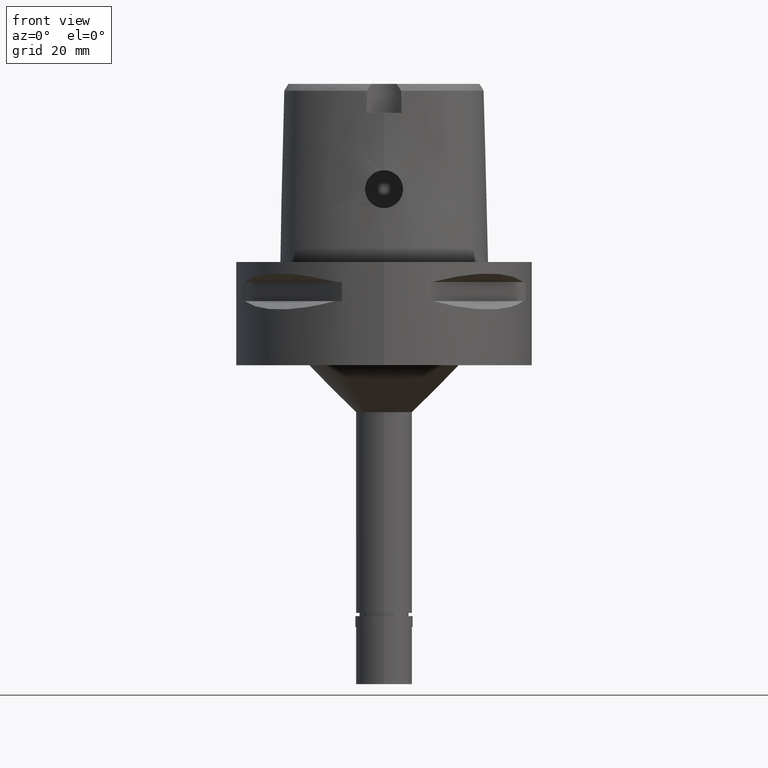
[diagram: clean part render]
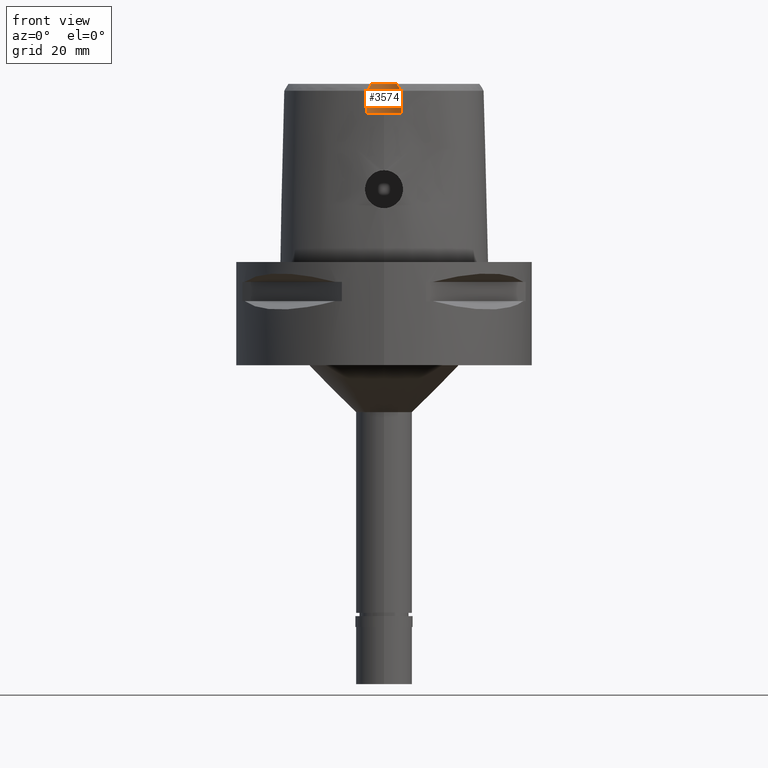
[diagram: same view with one face highlighted and labeled with its STEP entity id]
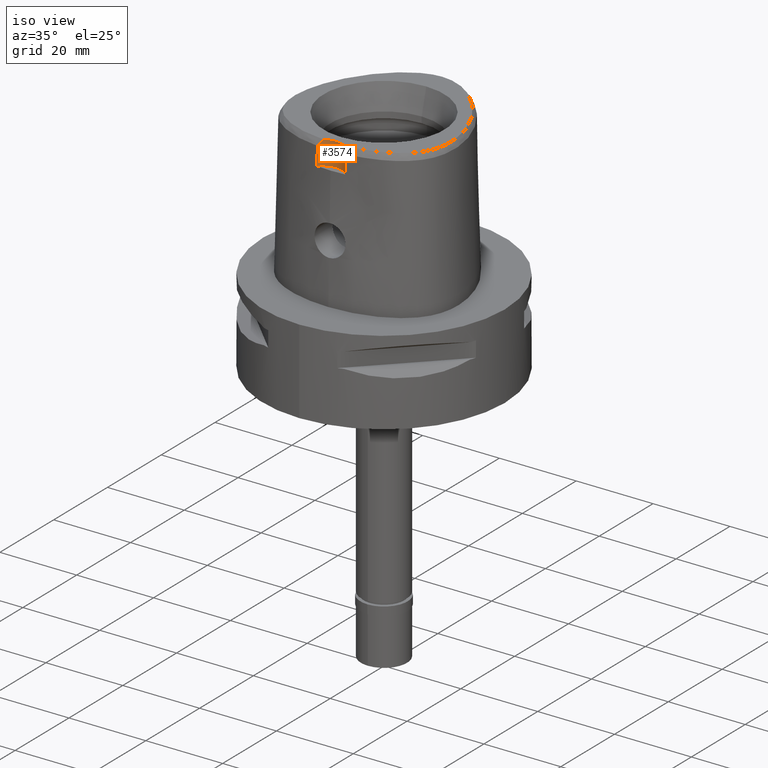
[diagram: same view with one face highlighted and labeled with its STEP entity id]
A machine part, front view. The second image highlights one B-rep face of the part: STEP entity #3574.
A second angle (iso view) of the same face is appended — the face is thin or edge-on in the first view.
In plain terms, the highlighted cylindrical surface (edge-blend (fillet) strip) has radius 5 mm, axis along (0, 0, 1).
Its self-contained STEP definition (entity closure, byte-faithful):
#209 = DIRECTION ( 'NONE',  ( 0.0000000000000000000, 0.0000000000000000000, 1.000000000000000000 ) ) ;
#422 = EDGE_CURVE ( 'NONE', #1722, #1509, #3290, .T. ) ;
#498 = CYLINDRICAL_SURFACE ( 'NONE', #4521, 5.000000000000000888 ) ;
#587 = CARTESIAN_POINT ( 'NONE',  ( 0.0000000000000000000, -23.00000000000000000, 38.00000000000000000 ) ) ;
#610 = CARTESIAN_POINT ( 'NONE',  ( 2.682287482605000051, -18.78036330228999873, 38.00000000000000000 ) ) ;
#933 = CARTESIAN_POINT ( 'NONE',  ( 3.014270382155000316, -19.00381249491000091, 37.57713254553000581 ) ) ;
#938 = EDGE_LOOP ( 'NONE', ( #4337, #1459, #3170, #3462, #1265, #2893 ) ) ;
#942 = AXIS2_PLACEMENT_3D ( 'NONE', #1926, #4588, #3098 ) ;
#1182 = CARTESIAN_POINT ( 'NONE',  ( -3.637738201363999835, -19.56971413236999879, 36.52186244848000030 ) ) ;
#1265 = ORIENTED_EDGE ( 'NONE', *, *, #4240, .T. ) ;
#1302 = CARTESIAN_POINT ( 'NONE',  ( 3.538488949422000207, -19.46446266332999997, 36.71648592114999587 ) ) ;
#1459 = ORIENTED_EDGE ( 'NONE', *, *, #422, .T. ) ;
#1509 = VERTEX_POINT ( 'NONE', #2317 ) ;
#1542 = CARTESIAN_POINT ( 'NONE',  ( -3.014271304909210247, -18.99139391536741783, 37.59976690300005941 ) ) ;
#1600 = CARTESIAN_POINT ( 'NONE',  ( 3.736696120837999402, -19.67778323291999953, 31.80000004972999861 ) ) ;
#1647 = CARTESIAN_POINT ( 'NONE',  ( 3.637738219117000238, -19.56971420299000286, 36.52185956443999970 ) ) ;
#1660 = VERTEX_POINT ( 'NONE', #4727 ) ;
#1719 = DIRECTION ( 'NONE',  ( 0.0000000000000000000, 1.000000000000000000, 0.0000000000000000000 ) ) ;
#1722 = VERTEX_POINT ( 'NONE', #1182 ) ;
#1809 = B_SPLINE_CURVE_WITH_KNOTS ( 'NONE', 3,
 ( #1600, #3911, #2412, #3515 ),
 .UNSPECIFIED., .F., .F.,
 ( 4, 4 ),
 ( 0.0000000000000000000, 1.000000000000000000 ),
 .UNSPECIFIED. ) ;
#1830 = VERTEX_POINT ( 'NONE', #4648 ) ;
#1926 = CARTESIAN_POINT ( 'NONE',  ( 0.0000000000000000000, -23.00000000000000000, 31.80000000000000071 ) ) ;
#2004 = CARTESIAN_POINT ( 'NONE',  ( 0.0000000000000000000, -23.00000000000000000, 38.00000000000000000 ) ) ;
#2057 = EDGE_CURVE ( 'NONE', #1830, #1722, #3530, .T. ) ;
#2260 = CARTESIAN_POINT ( 'NONE',  ( -2.682279906006999948, -18.78035848609999903, 38.00000000000000000 ) ) ;
#2278 = VERTEX_POINT ( 'NONE', #3221 ) ;
#2317 = CARTESIAN_POINT ( 'NONE',  ( -3.736722311398999796, -19.67781602443999844, 31.80000000000000071 ) ) ;
#2412 = CARTESIAN_POINT ( 'NONE',  ( 3.671249151389730514, -19.60525176641679579, 34.94790639287000289 ) ) ;
#2478 = CARTESIAN_POINT ( 'NONE',  ( -3.671249123513567802, -19.60525173594972514, 34.94790829898666829 ) ) ;
#2677 = CIRCLE ( 'NONE', #942, 5.000000000000000000 ) ;
#2865 = CARTESIAN_POINT ( 'NONE',  ( 2.793691164375999847, -18.85117904367999841, 37.86569443088999520 ) ) ;
#2893 = ORIENTED_EDGE ( 'NONE', *, *, #3229, .T. ) ;
#2920 = VERTEX_POINT ( 'NONE', #1647 ) ;
#2997 = EDGE_CURVE ( 'NONE', #1509, #2278, #2677, .T. ) ;
#3055 = CARTESIAN_POINT ( 'NONE',  ( -3.637738201363999835, -19.56971413236999879, 36.52186244848000030 ) ) ;
#3098 = DIRECTION ( 'NONE',  ( -0.7473444622798740555, 0.6644367951126772809, 0.0000000000000000000 ) ) ;
#3132 = CARTESIAN_POINT ( 'NONE',  ( -3.704239276368590961, -19.64128040965313460, 33.37395414949332917 ) ) ;
#3170 = ORIENTED_EDGE ( 'NONE', *, *, #2997, .T. ) ;
#3221 = CARTESIAN_POINT ( 'NONE',  ( 3.736696120837999402, -19.67778323291999953, 31.80000004972999861 ) ) ;
#3229 = EDGE_CURVE ( 'NONE', #1660, #1830, #3715, .T. ) ;
#3290 = B_SPLINE_CURVE_WITH_KNOTS ( 'NONE', 3,
 ( #4672, #2478, #3132, #3923 ),
 .UNSPECIFIED., .F., .F.,
 ( 4, 4 ),
 ( 0.0000000000000000000, 1.000000000000000000 ),
 .UNSPECIFIED. ) ;
#3335 = CARTESIAN_POINT ( 'NONE',  ( -3.339321438917649765, -19.25325016379529686, 37.10705438582672855 ) ) ;
#3462 = ORIENTED_EDGE ( 'NONE', *, *, #4033, .T. ) ;
#3515 = CARTESIAN_POINT ( 'NONE',  ( 3.637738219117000238, -19.56971420299000286, 36.52185956443999970 ) ) ;
#3524 = DIRECTION ( 'NONE',  ( 0.0000000000000000000, 0.0000000000000000000, 1.000000000000000000 ) ) ;
#3530 = B_SPLINE_CURVE_WITH_KNOTS ( 'NONE', 3,
 ( #2260, #1542, #3335, #3055 ),
 .UNSPECIFIED., .F., .F.,
 ( 4, 4 ),
 ( 0.0000000000000000000, 1.000000000000000000 ),
 .UNSPECIFIED. ) ;
#3574 = ADVANCED_FACE ( 'NONE', ( #3899 ), #498, .F. ) ;
#3715 = CIRCLE ( 'NONE', #4354, 5.000000000000000888 ) ;
#3899 = FACE_OUTER_BOUND ( 'NONE', #938, .T. ) ;
#3911 = CARTESIAN_POINT ( 'NONE',  ( 3.704239288984441103, -19.64128042389065598, 33.37395322129999897 ) ) ;
#3923 = CARTESIAN_POINT ( 'NONE',  ( -3.736722311398999796, -19.67781602443999844, 31.80000000000000071 ) ) ;
#3964 = CARTESIAN_POINT ( 'NONE',  ( 3.637738219117000238, -19.56971420299000286, 36.52185956443999970 ) ) ;
#4033 = EDGE_CURVE ( 'NONE', #2278, #2920, #1809, .T. ) ;
#4240 = EDGE_CURVE ( 'NONE', #2920, #1660, #4650, .T. ) ;
#4297 = DIRECTION ( 'NONE',  ( 0.0000000000000000000, 1.000000000000000000, 0.0000000000000000000 ) ) ;
#4333 = CARTESIAN_POINT ( 'NONE',  ( 3.333975397841999921, -19.26591245622000059, 37.08556507379000067 ) ) ;
#4337 = ORIENTED_EDGE ( 'NONE', *, *, #2057, .T. ) ;
#4354 = AXIS2_PLACEMENT_3D ( 'NONE', #587, #209, #1719 ) ;
#4521 = AXIS2_PLACEMENT_3D ( 'NONE', #2004, #3524, #4297 ) ;
#4588 = DIRECTION ( 'NONE',  ( 0.0000000000000000000, 0.0000000000000000000, -1.000000000000000000 ) ) ;
#4648 = CARTESIAN_POINT ( 'NONE',  ( -2.682279906006999948, -18.78035848609999903, 38.00000000000000000 ) ) ;
#4650 = B_SPLINE_CURVE_WITH_KNOTS ( 'NONE', 3,
 ( #3964, #1302, #4333, #933, #2865, #610 ),
 .UNSPECIFIED., .F., .F.,
 ( 4, 1, 1, 4 ),
 ( 0.0000000000000000000, 0.3333333333333000081, 0.6666666666667000474, 1.000000000000000000 ),
 .UNSPECIFIED. ) ;
#4672 = CARTESIAN_POINT ( 'NONE',  ( -3.637738201363999835, -19.56971413236999879, 36.52186244848000030 ) ) ;
#4727 = CARTESIAN_POINT ( 'NONE',  ( 2.682287482605000051, -18.78036330228999873, 38.00000000000000000 ) ) ;